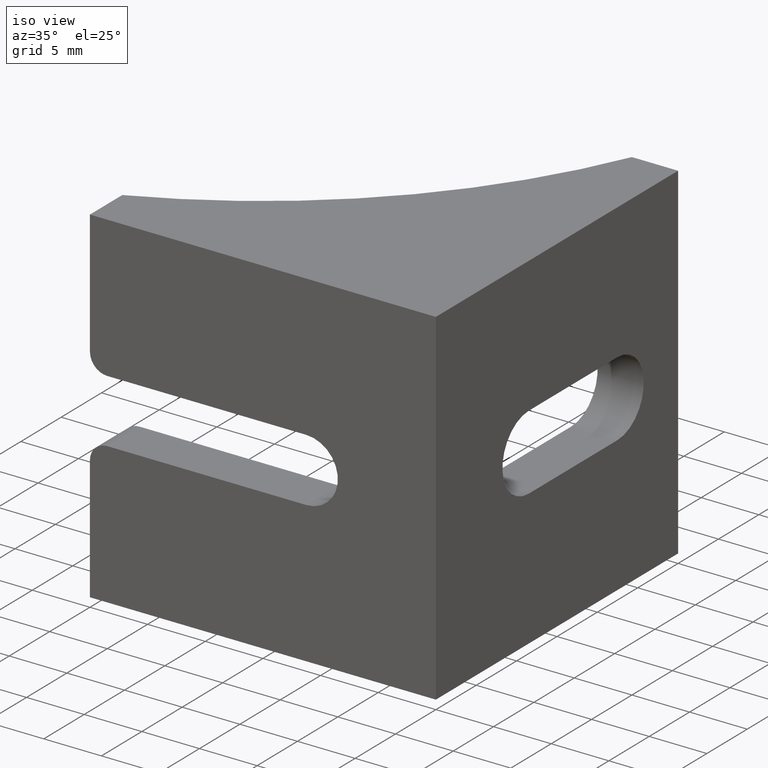
[diagram: clean part render]
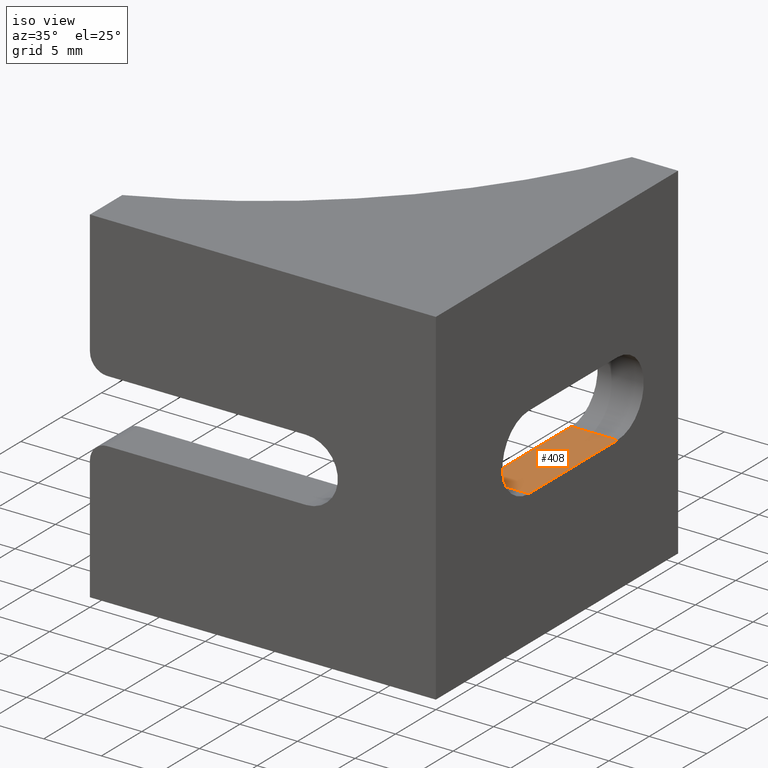
[diagram: same view with one face highlighted and labeled with its STEP entity id]
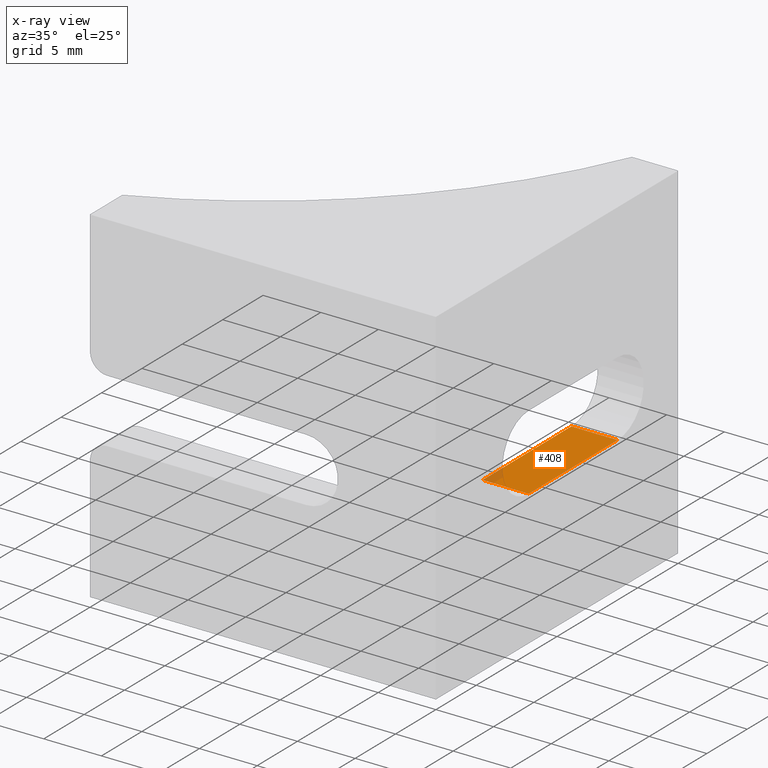
[diagram: x-ray of the same camera — body ghosted, the highlighted face saturated]
A machine part, iso view. The second image highlights one B-rep face of the part: STEP entity #408.
The next image is the same camera in x-ray: the body ghosted, the highlighted face saturated — about 4% of this face is hidden behind the body in this view.
In plain terms, the highlighted planar face has unit normal (0, 0, -1).
Its self-contained STEP definition (entity closure, byte-faithful):
#24=PLANE('',#441);
#43=FACE_OUTER_BOUND('',#63,.T.);
#63=EDGE_LOOP('',(#323,#324,#325,#326));
#102=LINE('',#647,#146);
#103=LINE('',#650,#147);
#104=LINE('',#652,#148);
#105=LINE('',#653,#149);
#146=VECTOR('',#522,4.);
#147=VECTOR('',#525,11.);
#148=VECTOR('',#526,11.);
#149=VECTOR('',#527,4.);
#203=VERTEX_POINT('',#643);
#204=VERTEX_POINT('',#645);
#205=VERTEX_POINT('',#649);
#206=VERTEX_POINT('',#651);
#250=EDGE_CURVE('',#204,#203,#102,.T.);
#251=EDGE_CURVE('',#203,#205,#103,.T.);
#252=EDGE_CURVE('',#206,#204,#104,.T.);
#253=EDGE_CURVE('',#206,#205,#105,.T.);
#323=ORIENTED_EDGE('',*,*,#251,.F.);
#324=ORIENTED_EDGE('',*,*,#250,.F.);
#325=ORIENTED_EDGE('',*,*,#252,.F.);
#326=ORIENTED_EDGE('',*,*,#253,.T.);
#408=ADVANCED_FACE('',(#43),#24,.F.);
#441=AXIS2_PLACEMENT_3D('',#648,#523,#524);
#522=DIRECTION('',(-1.,0.,0.));
#523=DIRECTION('center_axis',(0.,0.,-1.));
#524=DIRECTION('ref_axis',(0.,-1.,0.));
#525=DIRECTION('',(0.,1.,0.));
#526=DIRECTION('',(0.,-1.,0.));
#527=DIRECTION('',(-1.,0.,0.));
#643=CARTESIAN_POINT('',(11.,-3.5,11.75));
#645=CARTESIAN_POINT('',(15.,-3.5,11.75));
#647=CARTESIAN_POINT('',(15.,-3.5,11.75));
#648=CARTESIAN_POINT('Origin',(15.,7.5,11.75));
#649=CARTESIAN_POINT('',(11.,7.5,11.75));
#650=CARTESIAN_POINT('',(11.,4.75102879377543,11.75));
#651=CARTESIAN_POINT('',(15.,7.5,11.75));
#652=CARTESIAN_POINT('',(15.,-3.75,11.75));
#653=CARTESIAN_POINT('',(15.,7.5,11.75));